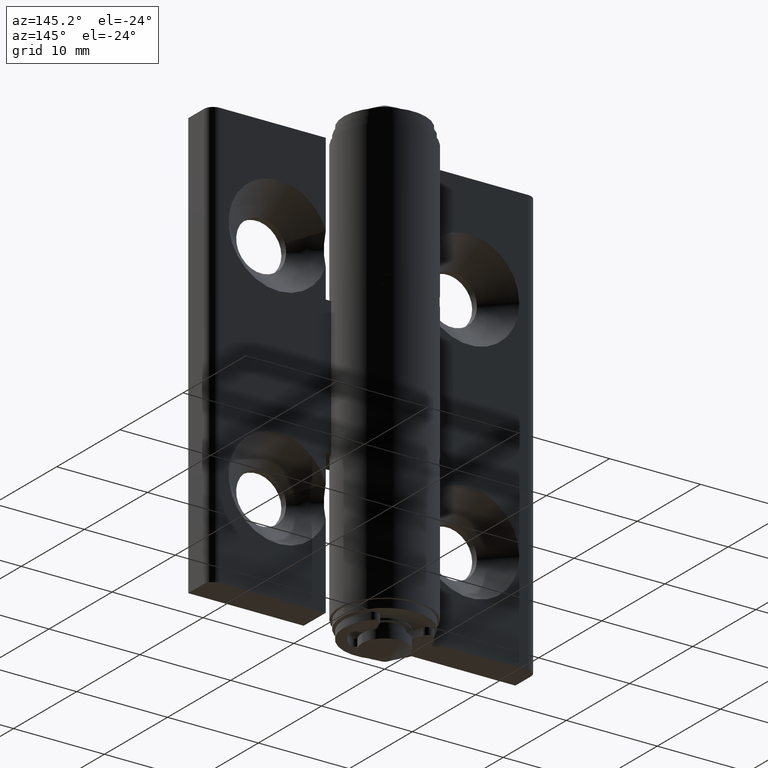
[diagram: clean part render]
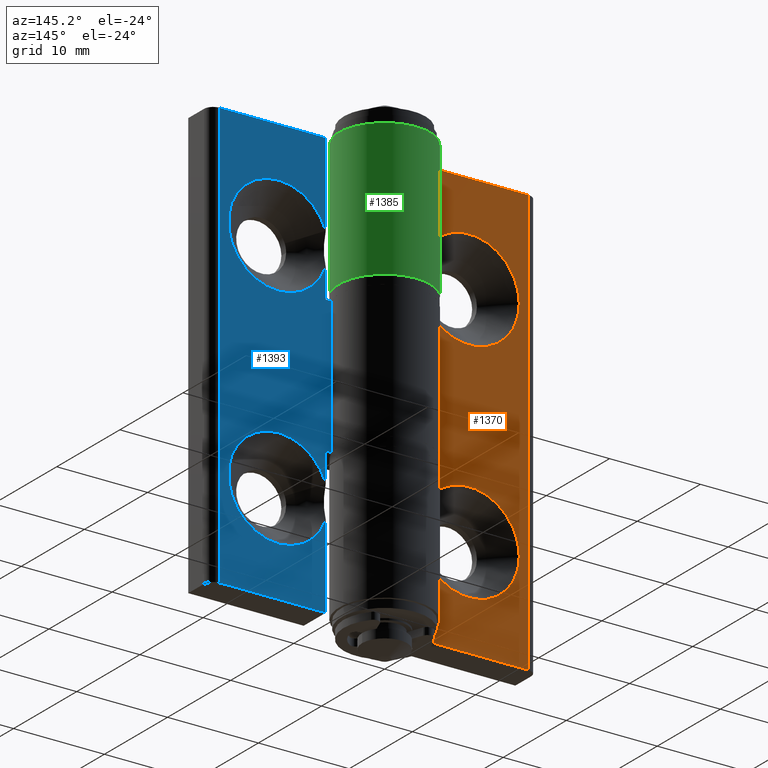
[diagram: same view with three faces highlighted in distinct colors, each labeled with its STEP entity id]
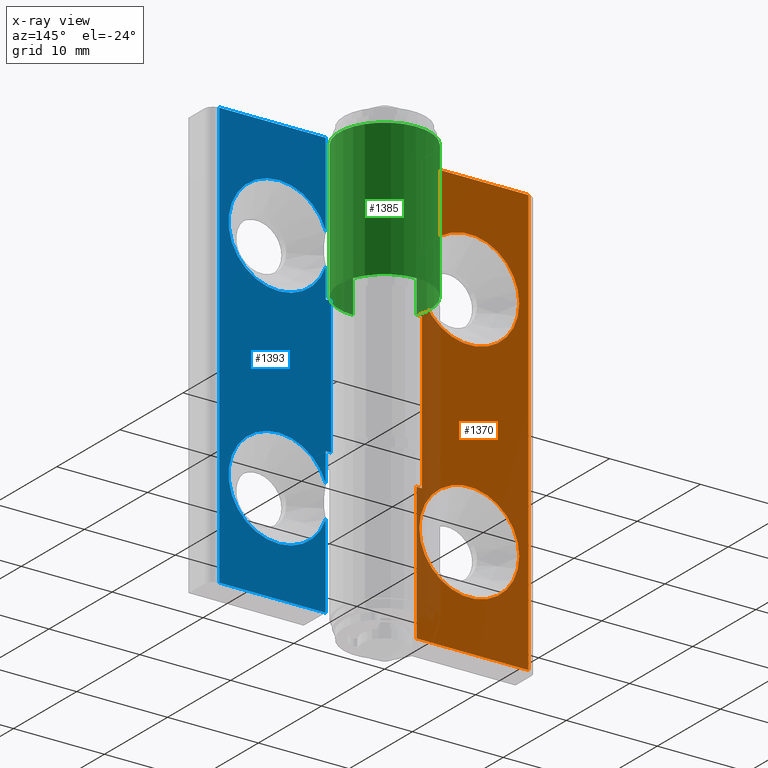
[diagram: x-ray of the same camera — body ghosted, the three highlighted faces saturated]
A machine part, auxiliary view with three faces highlighted in distinct colors.
The next image is the same camera in x-ray (body ghosted, the three faces saturated) — at least one of them is partly hidden behind the body in this view.
Their STEP definitions:

[orange] entity #1370 — the highlighted planar face has unit normal (0, 1, 0).
#119=FACE_BOUND('',#240,.T.);
#120=FACE_BOUND('',#241,.T.);
#153=FACE_OUTER_BOUND('',#239,.T.);
#239=EDGE_LOOP('',(#967,#968,#969,#970,#971,#972,#973,#974));
#240=EDGE_LOOP('',(#975));
#241=EDGE_LOOP('',(#976));
#357=CIRCLE('',#1466,5.5);
#358=CIRCLE('',#1467,5.5);
#429=LINE('',#2096,#535);
#432=LINE('',#2107,#538);
#435=LINE('',#2116,#541);
#436=LINE('',#2118,#542);
#437=LINE('',#2120,#543);
#438=LINE('',#2122,#544);
#439=LINE('',#2124,#545);
#440=LINE('',#2125,#546);
#535=VECTOR('',#1638,0.59787282179651);
#538=VECTOR('',#1647,0.59787282179651);
#541=VECTOR('',#1656,17.);
#542=VECTOR('',#1657,15.);
#543=VECTOR('',#1658,12.2978728217965);
#544=VECTOR('',#1659,47.);
#545=VECTOR('',#1660,12.2978728217965);
#546=VECTOR('',#1661,15.);
#641=VERTEX_POINT('',#2094);
#642=VERTEX_POINT('',#2095);
#646=VERTEX_POINT('',#2105);
#647=VERTEX_POINT('',#2106);
#651=VERTEX_POINT('',#2117);
#652=VERTEX_POINT('',#2119);
#653=VERTEX_POINT('',#2121);
#654=VERTEX_POINT('',#2123);
#655=VERTEX_POINT('',#2126);
#656=VERTEX_POINT('',#2128);
#773=EDGE_CURVE('',#641,#642,#429,.T.);
#778=EDGE_CURVE('',#646,#647,#432,.T.);
#783=EDGE_CURVE('',#647,#641,#435,.T.);
#784=EDGE_CURVE('',#651,#642,#436,.T.);
#785=EDGE_CURVE('',#652,#651,#437,.T.);
#786=EDGE_CURVE('',#653,#652,#438,.T.);
#787=EDGE_CURVE('',#654,#653,#439,.T.);
#788=EDGE_CURVE('',#646,#654,#440,.T.);
#789=EDGE_CURVE('',#655,#655,#357,.T.);
#790=EDGE_CURVE('',#656,#656,#358,.T.);
#967=ORIENTED_EDGE('',*,*,#778,.T.);
#968=ORIENTED_EDGE('',*,*,#783,.T.);
#969=ORIENTED_EDGE('',*,*,#773,.T.);
#970=ORIENTED_EDGE('',*,*,#784,.F.);
#971=ORIENTED_EDGE('',*,*,#785,.F.);
#972=ORIENTED_EDGE('',*,*,#786,.F.);
#973=ORIENTED_EDGE('',*,*,#787,.F.);
#974=ORIENTED_EDGE('',*,*,#788,.F.);
#975=ORIENTED_EDGE('',*,*,#789,.T.);
#976=ORIENTED_EDGE('',*,*,#790,.T.);
#1327=PLANE('',#1465);
#1370=ADVANCED_FACE('',(#153,#119,#120),#1327,.T.);
#1465=AXIS2_PLACEMENT_3D('',#2115,#1654,#1655);
#1466=AXIS2_PLACEMENT_3D('',#2127,#1662,#1663);
#1467=AXIS2_PLACEMENT_3D('',#2129,#1664,#1665);
#1638=DIRECTION('',(-1.,0.,0.));
#1647=DIRECTION('',(1.,0.,0.));
#1654=DIRECTION('center_axis',(0.,1.,0.));
#1655=DIRECTION('ref_axis',(-1.,0.,0.));
#1656=DIRECTION('',(0.,0.,1.));
#1657=DIRECTION('',(0.,0.,-1.));
#1658=DIRECTION('',(-1.,0.,0.));
#1659=DIRECTION('',(0.,0.,1.));
#1660=DIRECTION('',(1.,0.,0.));
#1661=DIRECTION('',(0.,0.,-1.));
#1662=DIRECTION('center_axis',(0.,-1.,0.));
#1663=DIRECTION('ref_axis',(1.,0.,0.));
#1664=DIRECTION('center_axis',(0.,-1.,0.));
#1665=DIRECTION('ref_axis',(1.,0.,0.));
#2094=CARTESIAN_POINT('',(5.30000000000001,-1.7,8.5));
#2095=CARTESIAN_POINT('',(4.7021271782035,-1.7,8.5));
#2096=CARTESIAN_POINT('',(11.65,-1.7,8.5));
#2105=CARTESIAN_POINT('',(4.7021271782035,-1.7,-8.5));
#2106=CARTESIAN_POINT('',(5.30000000000001,-1.7,-8.5));
#2107=CARTESIAN_POINT('',(3.50816251430501,-1.7,-8.5));
#2115=CARTESIAN_POINT('Origin',(18.,-1.7,0.));
#2116=CARTESIAN_POINT('',(5.3,-1.7,-4.25));
#2117=CARTESIAN_POINT('',(4.7021271782035,-1.7,23.5));
#2118=CARTESIAN_POINT('',(4.7021271782035,-1.7,0.));
#2119=CARTESIAN_POINT('',(17.,-1.7,23.5));
#2120=CARTESIAN_POINT('',(18.,-1.7,23.5));
#2121=CARTESIAN_POINT('',(17.,-1.7,-23.5));
#2122=CARTESIAN_POINT('',(17.,-1.7,0.));
#2123=CARTESIAN_POINT('',(4.7021271782035,-1.7,-23.5));
#2124=CARTESIAN_POINT('',(18.,-1.7,-23.5));
#2125=CARTESIAN_POINT('',(4.7021271782035,-1.7,0.));
#2126=CARTESIAN_POINT('',(5.,-1.7,12.5));
#2127=CARTESIAN_POINT('Origin',(10.5,-1.7,12.5));
#2128=CARTESIAN_POINT('',(5.,-1.7,-12.5));
#2129=CARTESIAN_POINT('Origin',(10.5,-1.7,-12.5));

[blue] entity #1393 — the highlighted planar face has unit normal (0, 1, 0).
#176=FACE_OUTER_BOUND('',#276,.T.);
#276=EDGE_LOOP('',(#1077,#1078,#1079,#1080,#1081,#1082,#1083,#1084,#1085,
#1086,#1087,#1088));
#375=CIRCLE('',#1508,5.5);
#376=CIRCLE('',#1509,5.5);
#456=LINE('',#2191,#562);
#461=LINE('',#2206,#567);
#464=LINE('',#2217,#570);
#465=LINE('',#2222,#571);
#467=LINE('',#2225,#573);
#468=LINE('',#2231,#574);
#471=LINE('',#2236,#577);
#473=LINE('',#2245,#579);
#474=LINE('',#2248,#580);
#475=LINE('',#2249,#581);
#562=VECTOR('',#1737,0.59787282179651);
#567=VECTOR('',#1748,0.5978728217965);
#570=VECTOR('',#1757,9.2083527132831);
#571=VECTOR('',#1758,3.2083527132831);
#573=VECTOR('',#1760,3.2083527132831);
#574=VECTOR('',#1761,9.2083527132831);
#577=VECTOR('',#1768,15.);
#579=VECTOR('',#1776,47.);
#580=VECTOR('',#1781,11.7);
#581=VECTOR('',#1782,11.7);
#673=VERTEX_POINT('',#2189);
#674=VERTEX_POINT('',#2190);
#680=VERTEX_POINT('',#2203);
#681=VERTEX_POINT('',#2205);
#685=VERTEX_POINT('',#2214);
#686=VERTEX_POINT('',#2216);
#687=VERTEX_POINT('',#2218);
#688=VERTEX_POINT('',#2224);
#689=VERTEX_POINT('',#2226);
#690=VERTEX_POINT('',#2230);
#691=VERTEX_POINT('',#2238);
#694=VERTEX_POINT('',#2243);
#816=EDGE_CURVE('',#673,#674,#456,.T.);
#823=EDGE_CURVE('',#681,#680,#461,.T.);
#828=EDGE_CURVE('',#686,#685,#464,.T.);
#830=EDGE_CURVE('',#680,#687,#465,.T.);
#832=EDGE_CURVE('',#688,#673,#467,.T.);
#834=EDGE_CURVE('',#690,#689,#468,.T.);
#837=EDGE_CURVE('',#681,#674,#471,.T.);
#841=EDGE_CURVE('',#694,#691,#473,.T.);
#842=EDGE_CURVE('',#687,#686,#375,.T.);
#843=EDGE_CURVE('',#691,#685,#474,.T.);
#844=EDGE_CURVE('',#690,#694,#475,.T.);
#845=EDGE_CURVE('',#689,#688,#376,.T.);
#1077=ORIENTED_EDGE('',*,*,#816,.T.);
#1078=ORIENTED_EDGE('',*,*,#837,.F.);
#1079=ORIENTED_EDGE('',*,*,#823,.T.);
#1080=ORIENTED_EDGE('',*,*,#830,.T.);
#1081=ORIENTED_EDGE('',*,*,#842,.T.);
#1082=ORIENTED_EDGE('',*,*,#828,.T.);
#1083=ORIENTED_EDGE('',*,*,#843,.F.);
#1084=ORIENTED_EDGE('',*,*,#841,.F.);
#1085=ORIENTED_EDGE('',*,*,#844,.F.);
#1086=ORIENTED_EDGE('',*,*,#834,.T.);
#1087=ORIENTED_EDGE('',*,*,#845,.T.);
#1088=ORIENTED_EDGE('',*,*,#832,.T.);
#1339=PLANE('',#1507);
#1393=ADVANCED_FACE('',(#176),#1339,.T.);
#1507=AXIS2_PLACEMENT_3D('',#2246,#1777,#1778);
#1508=AXIS2_PLACEMENT_3D('',#2247,#1779,#1780);
#1509=AXIS2_PLACEMENT_3D('',#2250,#1783,#1784);
#1737=DIRECTION('',(-1.,0.,0.));
#1748=DIRECTION('',(1.,0.,0.));
#1757=DIRECTION('',(0.,0.,1.));
#1758=DIRECTION('',(0.,0.,1.));
#1760=DIRECTION('',(0.,0.,1.));
#1761=DIRECTION('',(0.,0.,1.));
#1768=DIRECTION('',(0.,0.,-1.));
#1776=DIRECTION('',(0.,0.,1.));
#1777=DIRECTION('center_axis',(0.,1.,0.));
#1778=DIRECTION('ref_axis',(-1.,0.,0.));
#1779=DIRECTION('center_axis',(0.,-1.,0.));
#1780=DIRECTION('ref_axis',(1.,0.,0.));
#1781=DIRECTION('',(-1.,0.,0.));
#1782=DIRECTION('',(1.,0.,0.));
#1783=DIRECTION('center_axis',(0.,-1.,0.));
#1784=DIRECTION('ref_axis',(1.,0.,0.));
#2189=CARTESIAN_POINT('',(5.30000000000001,-1.7,-7.5));
#2190=CARTESIAN_POINT('',(4.7021271782035,-1.7,-7.5));
#2191=CARTESIAN_POINT('',(11.65,-1.7,-7.5));
#2203=CARTESIAN_POINT('',(5.3,-1.7,7.5));
#2205=CARTESIAN_POINT('',(4.7021271782035,-1.7,7.5));
#2206=CARTESIAN_POINT('',(0.859877870739278,-1.7,7.5));
#2214=CARTESIAN_POINT('',(5.3,-1.7,23.5));
#2216=CARTESIAN_POINT('',(5.3,-1.7,14.2916472867169));
#2217=CARTESIAN_POINT('',(5.3,-1.7,3.75));
#2218=CARTESIAN_POINT('',(5.3,-1.7,10.7083527132831));
#2222=CARTESIAN_POINT('',(5.3,-1.7,3.75));
#2224=CARTESIAN_POINT('',(5.3,-1.7,-10.7083527132831));
#2225=CARTESIAN_POINT('',(5.3,-1.7,-11.75));
#2226=CARTESIAN_POINT('',(5.3,-1.7,-14.2916472867169));
#2230=CARTESIAN_POINT('',(5.3,-1.7,-23.5));
#2231=CARTESIAN_POINT('',(5.3,-1.7,-11.75));
#2236=CARTESIAN_POINT('',(4.7021271782035,-1.7,0.));
#2238=CARTESIAN_POINT('',(17.,-1.7,23.5));
#2243=CARTESIAN_POINT('',(17.,-1.7,-23.5));
#2245=CARTESIAN_POINT('',(17.,-1.7,0.));
#2246=CARTESIAN_POINT('Origin',(18.,-1.7,0.));
#2247=CARTESIAN_POINT('Origin',(10.5,-1.7,12.5));
#2248=CARTESIAN_POINT('',(18.,-1.7,23.5));
#2249=CARTESIAN_POINT('',(18.,-1.7,-23.5));
#2250=CARTESIAN_POINT('Origin',(10.5,-1.7,-12.5));

[green] entity #1385 — the highlighted cylindrical surface (partial cylindrical patch) has radius 5 mm, axis along (0, 0, -1).
#88=CYLINDRICAL_SURFACE('',#1492,5.);
#168=FACE_OUTER_BOUND('',#265,.T.);
#265=EDGE_LOOP('',(#1031,#1032,#1033,#1034));
#355=CIRCLE('',#1463,5.);
#363=CIRCLE('',#1477,5.);
#440=LINE('',#2125,#546);
#455=LINE('',#2184,#561);
#546=VECTOR('',#1661,15.);
#561=VECTOR('',#1728,15.);
#646=VERTEX_POINT('',#2105);
#648=VERTEX_POINT('',#2108);
#654=VERTEX_POINT('',#2123);
#665=VERTEX_POINT('',#2154);
#779=EDGE_CURVE('',#648,#646,#355,.T.);
#788=EDGE_CURVE('',#646,#654,#440,.T.);
#803=EDGE_CURVE('',#665,#654,#363,.T.);
#815=EDGE_CURVE('',#665,#648,#455,.T.);
#1031=ORIENTED_EDGE('',*,*,#779,.T.);
#1032=ORIENTED_EDGE('',*,*,#788,.T.);
#1033=ORIENTED_EDGE('',*,*,#803,.F.);
#1034=ORIENTED_EDGE('',*,*,#815,.T.);
#1385=ADVANCED_FACE('',(#168),#88,.T.);
#1463=AXIS2_PLACEMENT_3D('',#2109,#1648,#1649);
#1477=AXIS2_PLACEMENT_3D('',#2156,#1692,#1693);
#1492=AXIS2_PLACEMENT_3D('',#2185,#1729,#1730);
#1648=DIRECTION('center_axis',(0.,0.,-1.));
#1649=DIRECTION('ref_axis',(0.9404254356407,-0.34,0.));
#1661=DIRECTION('',(0.,0.,-1.));
#1692=DIRECTION('center_axis',(0.,0.,-1.));
#1693=DIRECTION('ref_axis',(0.9404254356407,-0.34,0.));
#1728=DIRECTION('',(0.,0.,1.));
#1729=DIRECTION('center_axis',(0.,0.,1.));
#1730=DIRECTION('ref_axis',(-0.574456264653803,0.818535277187245,0.));
#2105=CARTESIAN_POINT('',(4.7021271782035,-1.7,-8.5));
#2108=CARTESIAN_POINT('',(1.11022302462516E-15,-5.,-8.5));
#2109=CARTESIAN_POINT('Origin',(0.,0.,-8.5));
#2123=CARTESIAN_POINT('',(4.7021271782035,-1.7,-23.5));
#2125=CARTESIAN_POINT('',(4.7021271782035,-1.7,0.));
#2154=CARTESIAN_POINT('',(1.11022302462516E-15,-5.,-23.5));
#2156=CARTESIAN_POINT('Origin',(0.,0.,-23.5));
#2184=CARTESIAN_POINT('',(1.11022302462516E-15,-5.,0.));
#2185=CARTESIAN_POINT('Origin',(0.,0.,0.));